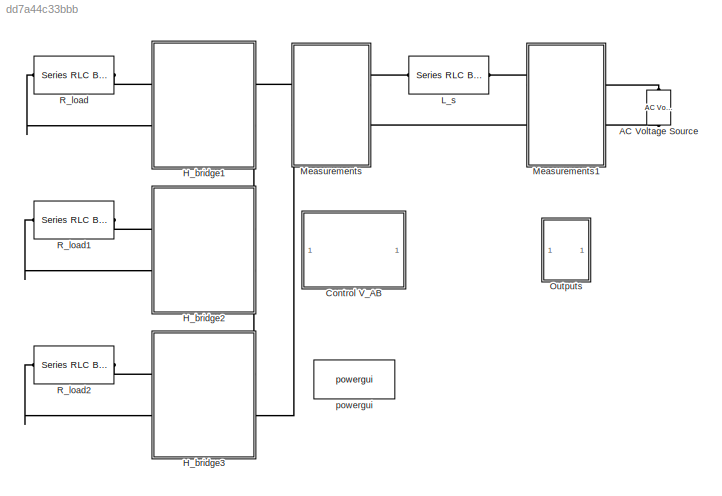
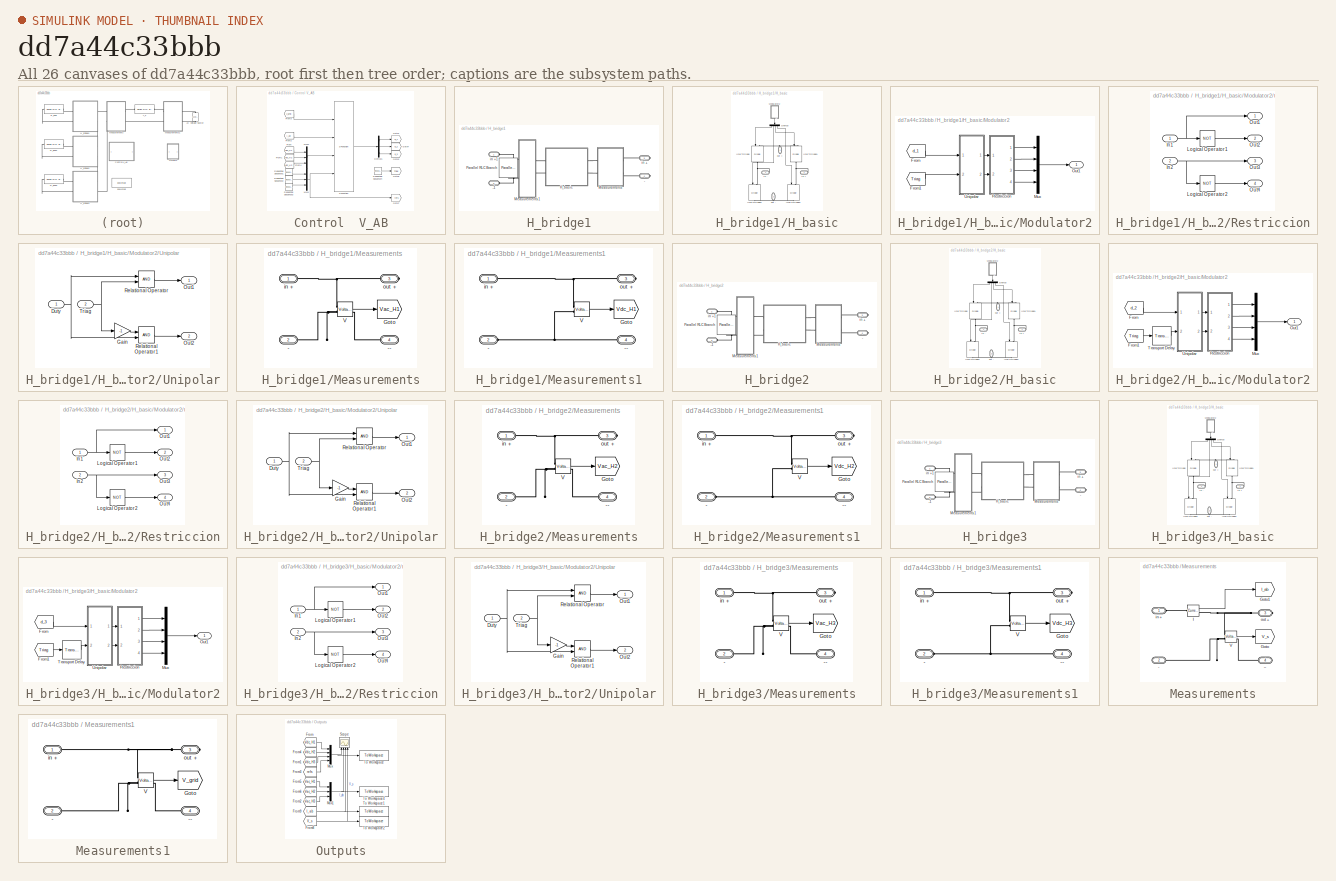
[diagram: thumbnail index - all 26 canvases of the model, root first then tree order]
MODEL slx_dd7a44c33bbb
KIND model
CONFIG AbsTol = auto
CONFIG EnableMultiTasking = off
CONFIG FixedStep = Tint
CONFIG InitFcn = run init_fcn_2.m;\n
CONFIG MaxStep = 1e-6
CONFIG MinStep = auto
CONFIG RelTol = 1e-6
CONFIG SampleTimeConstraint = Unconstrained
CONFIG SolverName = FixedStepDiscrete
CONFIG StartTime = 0.0
CONFIG StopTime = 9
BLOCK [Reference] AC Voltage Source  REF=spsACVoltageSourceLib/AC Voltage Source
  Ports = [0, 0, 0, 0, 0, 1, 1]
  SourceBlock = spsACVoltageSourceLib/AC Voltage Source
  SourceProductBaseCode = PS
  SourceType = AC Voltage Source
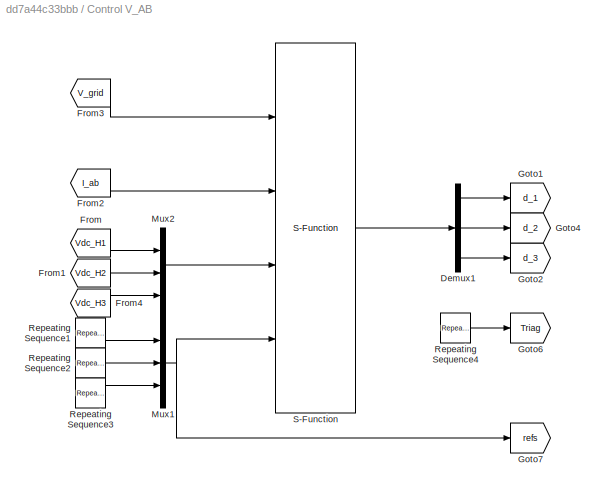
BLOCK [SubSystem] Control  V_AB
  Ports = []
  RequestExecContextInheritance = off
BLOCK [Demux] Control  V_AB/Demux1
  NameLocation = right
  Outputs = 3
  Ports = [1, 3]
BLOCK [From] Control  V_AB/From
  GotoTag = Vdc_H1
  TagVisibility = global
BLOCK [From] Control  V_AB/From1
  GotoTag = Vdc_H2
  TagVisibility = global
BLOCK [From] Control  V_AB/From2
  GotoTag = I_ab
  TagVisibility = global
BLOCK [From] Control  V_AB/From3
  GotoTag = V_grid
  TagVisibility = global
BLOCK [From] Control  V_AB/From4
  GotoTag = Vdc_H3
  TagVisibility = global
BLOCK [Goto] Control  V_AB/Goto1
  GotoTag = d_1
  TagVisibility = global
BLOCK [Goto] Control  V_AB/Goto2
  GotoTag = d_3
  TagVisibility = global
BLOCK [Goto] Control  V_AB/Goto4
  GotoTag = d_2
  TagVisibility = global
BLOCK [Goto] Control  V_AB/Goto6
  GotoTag = Triag
  TagVisibility = global
BLOCK [Goto] Control  V_AB/Goto7
  GotoTag = refs
  TagVisibility = global
BLOCK [Mux] Control  V_AB/Mux1
  DisplayOption = bar
  Inputs = 3
  Ports = [3, 1]
BLOCK [Mux] Control  V_AB/Mux2
  DisplayOption = bar
  Inputs = 3
  Ports = [3, 1]
BLOCK [Reference] Control  V_AB/Repeating Sequence1  REF=simulink/Sources/Repeating
Sequence
  Ports = [0, 1]
  SourceBlock = simulink/Sources/Repeating\nSequence
  SourceProductBaseCode = SL
  SourceType = Repeating table
BLOCK [Reference] Control  V_AB/Repeating Sequence2  REF=simulink/Sources/Repeating
Sequence
  Ports = [0, 1]
  SourceBlock = simulink/Sources/Repeating\nSequence
  SourceProductBaseCode = SL
  SourceType = Repeating table
BLOCK [Reference] Control  V_AB/Repeating Sequence3  REF=simulink/Sources/Repeating
Sequence
  Ports = [0, 1]
  SourceBlock = simulink/Sources/Repeating\nSequence
  SourceProductBaseCode = SL
  SourceType = Repeating table
BLOCK [Reference] Control  V_AB/Repeating Sequence4  REF=simulink/Sources/Repeating
Sequence
  Ports = [0, 1]
  SourceBlock = simulink/Sources/Repeating\nSequence
  SourceProductBaseCode = SL
  SourceType = Repeating table
BLOCK [S-Function] Control  V_AB/S-Function
  EnableBusSupport = off
  FunctionName = control_2
  Ports = [4, 1]
  SFcnIsStateOwnerBlock = off
  SFunctionDeploymentMode = off
BLOCK [SubSystem] H_bridge1
  Ports = [0, 0, 0, 0, 0, 2, 2]
  RequestExecContextInheritance = off
BLOCK [PMIOPort] H_bridge1/-
  Port = 4
  Side = Right
BLOCK [PMIOPort] H_bridge1/-1
  Port = 2
  Side = Left
BLOCK [SubSystem] H_bridge1/H_basic
  Ports = [0, 0, 0, 0, 0, 2, 2]
  RequestExecContextInheritance = off
BLOCK [Demux] H_bridge1/H_basic/Demux
  NameLocation = left
  Ports = [1, 4]
BLOCK [Reference] H_bridge1/H_basic/IGBT//Diode  REF=spsIGBTDiodeLib/IGBT//Diode
  NameLocation = left
  Ports = [1, 0, 0, 0, 0, 1, 1]
  SourceBlock = spsIGBTDiodeLib/IGBT//Diode
  SourceProductBaseCode = PS
  SourceType = IGBT/Diode
BLOCK [Reference] H_bridge1/H_basic/IGBT//Diode1  REF=spsIGBTDiodeLib/IGBT//Diode
  NameLocation = left
  Ports = [1, 0, 0, 0, 0, 1, 1]
  SourceBlock = spsIGBTDiodeLib/IGBT//Diode
  SourceProductBaseCode = PS
  SourceType = IGBT/Diode
BLOCK [Reference] H_bridge1/H_basic/IGBT//Diode2  REF=spsIGBTDiodeLib/IGBT//Diode
  NameLocation = left
  Ports = [1, 0, 0, 0, 0, 1, 1]
  SourceBlock = spsIGBTDiodeLib/IGBT//Diode
  SourceProductBaseCode = PS
  SourceType = IGBT/Diode
BLOCK [Reference] H_bridge1/H_basic/IGBT//Diode3  REF=spsIGBTDiodeLib/IGBT//Diode
  NameLocation = left
  Ports = [1, 0, 0, 0, 0, 1, 1]
  SourceBlock = spsIGBTDiodeLib/IGBT//Diode
  SourceProductBaseCode = PS
  SourceType = IGBT/Diode
BLOCK [SubSystem] H_bridge1/H_basic/Modulator2
  NameLocation = top
  Ports = [0, 1]
  RequestExecContextInheritance = off
BLOCK [From] H_bridge1/H_basic/Modulator2/From
  GotoTag = d_1
  TagVisibility = global
BLOCK [From] H_bridge1/H_basic/Modulator2/From1
  GotoTag = Triag
  TagVisibility = global
BLOCK [Mux] H_bridge1/H_basic/Modulator2/Mux
  DisplayOption = bar
  Ports = [4, 1]
BLOCK [Outport] H_bridge1/H_basic/Modulator2/Out1
BLOCK [SubSystem] H_bridge1/H_basic/Modulator2/Restriccion
  Ports = [2, 4]
  RequestExecContextInheritance = off
BLOCK [Inport] H_bridge1/H_basic/Modulator2/Restriccion/In1
BLOCK [Inport] H_bridge1/H_basic/Modulator2/Restriccion/In2
  Port = 2
BLOCK [Logic] H_bridge1/H_basic/Modulator2/Restriccion/Logical Operator1
  AllPortsSameDT = off
  Operator = NOT
  OutDataTypeStr = boolean
  Ports = [1, 1]
BLOCK [Logic] H_bridge1/H_basic/Modulator2/Restriccion/Logical Operator2
  AllPortsSameDT = off
  Operator = NOT
  OutDataTypeStr = boolean
  Ports = [1, 1]
BLOCK [Outport] H_bridge1/H_basic/Modulator2/Restriccion/Out1
BLOCK [Outport] H_bridge1/H_basic/Modulator2/Restriccion/Out2
  Port = 2
BLOCK [Outport] H_bridge1/H_basic/Modulator2/Restriccion/Out3
  Port = 3
BLOCK [Outport] H_bridge1/H_basic/Modulator2/Restriccion/Out4
  Port = 4
BLOCK [SubSystem] H_bridge1/H_basic/Modulator2/Unipolar
  Ports = [2, 2]
  RequestExecContextInheritance = off
BLOCK [Inport] H_bridge1/H_basic/Modulator2/Unipolar/Duty
BLOCK [Gain] H_bridge1/H_basic/Modulator2/Unipolar/Gain
  Gain = -1
BLOCK [Outport] H_bridge1/H_basic/Modulator2/Unipolar/Out1
BLOCK [Outport] H_bridge1/H_basic/Modulator2/Unipolar/Out2
  Port = 2
BLOCK [RelationalOperator] H_bridge1/H_basic/Modulator2/Unipolar/Relational Operator
  InputSameDT = off
  OutDataTypeStr = boolean
  Ports = [2, 1]
  RndMeth = Simplest
BLOCK [RelationalOperator] H_bridge1/H_basic/Modulator2/Unipolar/Relational Operator1
  InputSameDT = off
  OutDataTypeStr = boolean
  Ports = [2, 1]
  RndMeth = Simplest
BLOCK [Inport] H_bridge1/H_basic/Modulator2/Unipolar/Triag
  Port = 2
BLOCK [PMIOPort] H_bridge1/H_basic/in +
  Port = 3
  Side = Right
BLOCK [PMIOPort] H_bridge1/H_basic/in -
  Port = 4
  Side = Right
BLOCK [PMIOPort] H_bridge1/H_basic/out +
  Side = Left
BLOCK [PMIOPort] H_bridge1/H_basic/out -
  NameLocation = top
  Port = 2
  Side = Left
BLOCK [SubSystem] H_bridge1/Measurements
  Ports = [0, 0, 0, 0, 0, 2, 2]
  RequestExecContextInheritance = off
BLOCK [PMIOPort] H_bridge1/Measurements/-
  Port = 2
  Side = Left
BLOCK [PMIOPort] H_bridge1/Measurements/--
  Port = 4
  Side = Right
BLOCK [Goto] H_bridge1/Measurements/Goto
  GotoTag = Vac_H1
  TagVisibility = global
BLOCK [Reference] H_bridge1/Measurements/V  REF=spsVoltageMeasurementLib/Voltage Measurement
  Ports = [0, 1, 0, 0, 0, 2]
  SourceBlock = spsVoltageMeasurementLib/Voltage Measurement
  SourceProductBaseCode = PS
  SourceType = Voltage Measurement
  UserDataPersistent = on
BLOCK [PMIOPort] H_bridge1/Measurements/in +
  Side = Left
BLOCK [PMIOPort] H_bridge1/Measurements/out +
  Port = 3
  Side = Right
BLOCK [SubSystem] H_bridge1/Measurements1
  Ports = [0, 0, 0, 0, 0, 2, 2]
  RequestExecContextInheritance = off
BLOCK [PMIOPort] H_bridge1/Measurements1/-
  Port = 2
  Side = Left
BLOCK [PMIOPort] H_bridge1/Measurements1/--
  Port = 4
  Side = Right
BLOCK [Goto] H_bridge1/Measurements1/Goto
  GotoTag = Vdc_H1
  TagVisibility = global
BLOCK [Reference] H_bridge1/Measurements1/V  REF=spsVoltageMeasurementLib/Voltage Measurement
  Ports = [0, 1, 0, 0, 0, 2]
  SourceBlock = spsVoltageMeasurementLib/Voltage Measurement
  SourceProductBaseCode = PS
  SourceType = Voltage Measurement
  UserDataPersistent = on
BLOCK [PMIOPort] H_bridge1/Measurements1/in +
  Side = Left
BLOCK [PMIOPort] H_bridge1/Measurements1/out +
  Port = 3
  Side = Right
BLOCK [Reference] H_bridge1/Parallel RLC Branch  REF=spsParallelRLCBranchLib/Parallel RLC Branch
  AttributesFormatString = \n
  NameLocation = left
  Ports = [0, 0, 0, 0, 0, 1, 1]
  SourceBlock = spsParallelRLCBranchLib/Parallel RLC Branch
  SourceProductBaseCode = PS
  SourceType = Parallel RLC Branch
BLOCK [PMIOPort] H_bridge1/in +
  Port = 3
  Side = Right
BLOCK [PMIOPort] H_bridge1/in +1
  Side = Left
BLOCK [SubSystem] H_bridge2
  Ports = [0, 0, 0, 0, 0, 2, 2]
  RequestExecContextInheritance = off
BLOCK [PMIOPort] H_bridge2/-
  Port = 4
  Side = Right
BLOCK [PMIOPort] H_bridge2/-1
  Port = 2
  Side = Left
BLOCK [SubSystem] H_bridge2/H_basic
  Ports = [0, 0, 0, 0, 0, 2, 2]
  RequestExecContextInheritance = off
BLOCK [Demux] H_bridge2/H_basic/Demux
  NameLocation = left
  Ports = [1, 4]
BLOCK [Reference] H_bridge2/H_basic/IGBT//Diode  REF=spsIGBTDiodeLib/IGBT//Diode
  NameLocation = left
  Ports = [1, 0, 0, 0, 0, 1, 1]
  SourceBlock = spsIGBTDiodeLib/IGBT//Diode
  SourceProductBaseCode = PS
  SourceType = IGBT/Diode
BLOCK [Reference] H_bridge2/H_basic/IGBT//Diode1  REF=spsIGBTDiodeLib/IGBT//Diode
  NameLocation = left
  Ports = [1, 0, 0, 0, 0, 1, 1]
  SourceBlock = spsIGBTDiodeLib/IGBT//Diode
  SourceProductBaseCode = PS
  SourceType = IGBT/Diode
BLOCK [Reference] H_bridge2/H_basic/IGBT//Diode2  REF=spsIGBTDiodeLib/IGBT//Diode
  NameLocation = left
  Ports = [1, 0, 0, 0, 0, 1, 1]
  SourceBlock = spsIGBTDiodeLib/IGBT//Diode
  SourceProductBaseCode = PS
  SourceType = IGBT/Diode
BLOCK [Reference] H_bridge2/H_basic/IGBT//Diode3  REF=spsIGBTDiodeLib/IGBT//Diode
  NameLocation = left
  Ports = [1, 0, 0, 0, 0, 1, 1]
  SourceBlock = spsIGBTDiodeLib/IGBT//Diode
  SourceProductBaseCode = PS
  SourceType = IGBT/Diode
BLOCK [SubSystem] H_bridge2/H_basic/Modulator2
  NameLocation = top
  Ports = [0, 1]
  RequestExecContextInheritance = off
BLOCK [From] H_bridge2/H_basic/Modulator2/From
  GotoTag = d_2
  TagVisibility = global
BLOCK [From] H_bridge2/H_basic/Modulator2/From1
  GotoTag = Triag
  TagVisibility = global
BLOCK [Mux] H_bridge2/H_basic/Modulator2/Mux
  DisplayOption = bar
  Ports = [4, 1]
BLOCK [Outport] H_bridge2/H_basic/Modulator2/Out1
BLOCK [SubSystem] H_bridge2/H_basic/Modulator2/Restriccion
  Ports = [2, 4]
  RequestExecContextInheritance = off
BLOCK [Inport] H_bridge2/H_basic/Modulator2/Restriccion/In1
BLOCK [Inport] H_bridge2/H_basic/Modulator2/Restriccion/In2
  Port = 2
BLOCK [Logic] H_bridge2/H_basic/Modulator2/Restriccion/Logical Operator1
  AllPortsSameDT = off
  Operator = NOT
  OutDataTypeStr = boolean
  Ports = [1, 1]
BLOCK [Logic] H_bridge2/H_basic/Modulator2/Restriccion/Logical Operator2
  AllPortsSameDT = off
  Operator = NOT
  OutDataTypeStr = boolean
  Ports = [1, 1]
BLOCK [Outport] H_bridge2/H_basic/Modulator2/Restriccion/Out1
BLOCK [Outport] H_bridge2/H_basic/Modulator2/Restriccion/Out2
  Port = 2
BLOCK [Outport] H_bridge2/H_basic/Modulator2/Restriccion/Out3
  Port = 3
BLOCK [Outport] H_bridge2/H_basic/Modulator2/Restriccion/Out4
  Port = 4
BLOCK [TransportDelay] H_bridge2/H_basic/Modulator2/Transport Delay
  DelayTime = shift
  Ports = [1, 1]
BLOCK [SubSystem] H_bridge2/H_basic/Modulator2/Unipolar
  Ports = [2, 2]
  RequestExecContextInheritance = off
BLOCK [Inport] H_bridge2/H_basic/Modulator2/Unipolar/Duty
BLOCK [Gain] H_bridge2/H_basic/Modulator2/Unipolar/Gain
  Gain = -1
BLOCK [Outport] H_bridge2/H_basic/Modulator2/Unipolar/Out1
BLOCK [Outport] H_bridge2/H_basic/Modulator2/Unipolar/Out2
  Port = 2
BLOCK [RelationalOperator] H_bridge2/H_basic/Modulator2/Unipolar/Relational Operator
  InputSameDT = off
  OutDataTypeStr = boolean
  Ports = [2, 1]
  RndMeth = Simplest
BLOCK [RelationalOperator] H_bridge2/H_basic/Modulator2/Unipolar/Relational Operator1
  InputSameDT = off
  OutDataTypeStr = boolean
  Ports = [2, 1]
  RndMeth = Simplest
BLOCK [Inport] H_bridge2/H_basic/Modulator2/Unipolar/Triag
  Port = 2
BLOCK [PMIOPort] H_bridge2/H_basic/in +
  Port = 3
  Side = Right
BLOCK [PMIOPort] H_bridge2/H_basic/in -
  Port = 4
  Side = Right
BLOCK [PMIOPort] H_bridge2/H_basic/out +
  Side = Left
BLOCK [PMIOPort] H_bridge2/H_basic/out -
  NameLocation = top
  Port = 2
  Side = Left
BLOCK [SubSystem] H_bridge2/Measurements
  Ports = [0, 0, 0, 0, 0, 2, 2]
  RequestExecContextInheritance = off
BLOCK [PMIOPort] H_bridge2/Measurements/-
  Port = 2
  Side = Left
BLOCK [PMIOPort] H_bridge2/Measurements/--
  Port = 4
  Side = Right
BLOCK [Goto] H_bridge2/Measurements/Goto
  GotoTag = Vac_H2
  TagVisibility = global
BLOCK [Reference] H_bridge2/Measurements/V  REF=spsVoltageMeasurementLib/Voltage Measurement
  Ports = [0, 1, 0, 0, 0, 2]
  SourceBlock = spsVoltageMeasurementLib/Voltage Measurement
  SourceProductBaseCode = PS
  SourceType = Voltage Measurement
  UserDataPersistent = on
BLOCK [PMIOPort] H_bridge2/Measurements/in +
  Side = Left
BLOCK [PMIOPort] H_bridge2/Measurements/out +
  Port = 3
  Side = Right
BLOCK [SubSystem] H_bridge2/Measurements1
  Ports = [0, 0, 0, 0, 0, 2, 2]
  RequestExecContextInheritance = off
BLOCK [PMIOPort] H_bridge2/Measurements1/-
  Port = 2
  Side = Left
BLOCK [PMIOPort] H_bridge2/Measurements1/--
  Port = 4
  Side = Right
BLOCK [Goto] H_bridge2/Measurements1/Goto
  GotoTag = Vdc_H2
  TagVisibility = global
BLOCK [Reference] H_bridge2/Measurements1/V  REF=spsVoltageMeasurementLib/Voltage Measurement
  Ports = [0, 1, 0, 0, 0, 2]
  SourceBlock = spsVoltageMeasurementLib/Voltage Measurement
  SourceProductBaseCode = PS
  SourceType = Voltage Measurement
  UserDataPersistent = on
BLOCK [PMIOPort] H_bridge2/Measurements1/in +
  Side = Left
BLOCK [PMIOPort] H_bridge2/Measurements1/out +
  Port = 3
  Side = Right
BLOCK [Reference] H_bridge2/Parallel RLC Branch  REF=spsParallelRLCBranchLib/Parallel RLC Branch
  AttributesFormatString = \n
  NameLocation = left
  Ports = [0, 0, 0, 0, 0, 1, 1]
  SourceBlock = spsParallelRLCBranchLib/Parallel RLC Branch
  SourceProductBaseCode = PS
  SourceType = Parallel RLC Branch
BLOCK [PMIOPort] H_bridge2/in +
  Port = 3
  Side = Right
BLOCK [PMIOPort] H_bridge2/in +1
  Side = Left
BLOCK [SubSystem] H_bridge3
  Ports = [0, 0, 0, 0, 0, 2, 2]
  RequestExecContextInheritance = off
BLOCK [PMIOPort] H_bridge3/-
  Port = 4
  Side = Right
BLOCK [PMIOPort] H_bridge3/-1
  Port = 2
  Side = Left
BLOCK [SubSystem] H_bridge3/H_basic
  Ports = [0, 0, 0, 0, 0, 2, 2]
  RequestExecContextInheritance = off
BLOCK [Demux] H_bridge3/H_basic/Demux
  NameLocation = left
  Ports = [1, 4]
BLOCK [Reference] H_bridge3/H_basic/IGBT//Diode  REF=spsIGBTDiodeLib/IGBT//Diode
  NameLocation = left
  Ports = [1, 0, 0, 0, 0, 1, 1]
  SourceBlock = spsIGBTDiodeLib/IGBT//Diode
  SourceProductBaseCode = PS
  SourceType = IGBT/Diode
BLOCK [Reference] H_bridge3/H_basic/IGBT//Diode1  REF=spsIGBTDiodeLib/IGBT//Diode
  NameLocation = left
  Ports = [1, 0, 0, 0, 0, 1, 1]
  SourceBlock = spsIGBTDiodeLib/IGBT//Diode
  SourceProductBaseCode = PS
  SourceType = IGBT/Diode
BLOCK [Reference] H_bridge3/H_basic/IGBT//Diode2  REF=spsIGBTDiodeLib/IGBT//Diode
  NameLocation = left
  Ports = [1, 0, 0, 0, 0, 1, 1]
  SourceBlock = spsIGBTDiodeLib/IGBT//Diode
  SourceProductBaseCode = PS
  SourceType = IGBT/Diode
BLOCK [Reference] H_bridge3/H_basic/IGBT//Diode3  REF=spsIGBTDiodeLib/IGBT//Diode
  NameLocation = left
  Ports = [1, 0, 0, 0, 0, 1, 1]
  SourceBlock = spsIGBTDiodeLib/IGBT//Diode
  SourceProductBaseCode = PS
  SourceType = IGBT/Diode
BLOCK [SubSystem] H_bridge3/H_basic/Modulator2
  NameLocation = top
  Ports = [0, 1]
  RequestExecContextInheritance = off
BLOCK [From] H_bridge3/H_basic/Modulator2/From
  GotoTag = d_3
  TagVisibility = global
BLOCK [From] H_bridge3/H_basic/Modulator2/From1
  GotoTag = Triag
  TagVisibility = global
BLOCK [Mux] H_bridge3/H_basic/Modulator2/Mux
  DisplayOption = bar
  Ports = [4, 1]
BLOCK [Outport] H_bridge3/H_basic/Modulator2/Out1
BLOCK [SubSystem] H_bridge3/H_basic/Modulator2/Restriccion
  Ports = [2, 4]
  RequestExecContextInheritance = off
BLOCK [Inport] H_bridge3/H_basic/Modulator2/Restriccion/In1
BLOCK [Inport] H_bridge3/H_basic/Modulator2/Restriccion/In2
  Port = 2
BLOCK [Logic] H_bridge3/H_basic/Modulator2/Restriccion/Logical Operator1
  AllPortsSameDT = off
  Operator = NOT
  OutDataTypeStr = boolean
  Ports = [1, 1]
BLOCK [Logic] H_bridge3/H_basic/Modulator2/Restriccion/Logical Operator2
  AllPortsSameDT = off
  Operator = NOT
  OutDataTypeStr = boolean
  Ports = [1, 1]
BLOCK [Outport] H_bridge3/H_basic/Modulator2/Restriccion/Out1
BLOCK [Outport] H_bridge3/H_basic/Modulator2/Restriccion/Out2
  Port = 2
BLOCK [Outport] H_bridge3/H_basic/Modulator2/Restriccion/Out3
  Port = 3
BLOCK [Outport] H_bridge3/H_basic/Modulator2/Restriccion/Out4
  Port = 4
BLOCK [TransportDelay] H_bridge3/H_basic/Modulator2/Transport Delay
  DelayTime = 2*shift
  Ports = [1, 1]
BLOCK [SubSystem] H_bridge3/H_basic/Modulator2/Unipolar
  Ports = [2, 2]
  RequestExecContextInheritance = off
BLOCK [Inport] H_bridge3/H_basic/Modulator2/Unipolar/Duty
BLOCK [Gain] H_bridge3/H_basic/Modulator2/Unipolar/Gain
  Gain = -1
BLOCK [Outport] H_bridge3/H_basic/Modulator2/Unipolar/Out1
BLOCK [Outport] H_bridge3/H_basic/Modulator2/Unipolar/Out2
  Port = 2
BLOCK [RelationalOperator] H_bridge3/H_basic/Modulator2/Unipolar/Relational Operator
  InputSameDT = off
  OutDataTypeStr = boolean
  Ports = [2, 1]
  RndMeth = Simplest
BLOCK [RelationalOperator] H_bridge3/H_basic/Modulator2/Unipolar/Relational Operator1
  InputSameDT = off
  OutDataTypeStr = boolean
  Ports = [2, 1]
  RndMeth = Simplest
BLOCK [Inport] H_bridge3/H_basic/Modulator2/Unipolar/Triag
  Port = 2
BLOCK [PMIOPort] H_bridge3/H_basic/in +
  Port = 3
  Side = Right
BLOCK [PMIOPort] H_bridge3/H_basic/in -
  Port = 4
  Side = Right
BLOCK [PMIOPort] H_bridge3/H_basic/out +
  Side = Left
BLOCK [PMIOPort] H_bridge3/H_basic/out -
  NameLocation = top
  Port = 2
  Side = Left
BLOCK [SubSystem] H_bridge3/Measurements
  Ports = [0, 0, 0, 0, 0, 2, 2]
  RequestExecContextInheritance = off
BLOCK [PMIOPort] H_bridge3/Measurements/-
  Port = 2
  Side = Left
BLOCK [PMIOPort] H_bridge3/Measurements/--
  Port = 4
  Side = Right
BLOCK [Goto] H_bridge3/Measurements/Goto
  GotoTag = Vac_H3
  TagVisibility = global
BLOCK [Reference] H_bridge3/Measurements/V  REF=spsVoltageMeasurementLib/Voltage Measurement
  Ports = [0, 1, 0, 0, 0, 2]
  SourceBlock = spsVoltageMeasurementLib/Voltage Measurement
  SourceProductBaseCode = PS
  SourceType = Voltage Measurement
  UserDataPersistent = on
BLOCK [PMIOPort] H_bridge3/Measurements/in +
  Side = Left
BLOCK [PMIOPort] H_bridge3/Measurements/out +
  Port = 3
  Side = Right
BLOCK [SubSystem] H_bridge3/Measurements1
  Ports = [0, 0, 0, 0, 0, 2, 2]
  RequestExecContextInheritance = off
BLOCK [PMIOPort] H_bridge3/Measurements1/-
  Port = 2
  Side = Left
BLOCK [PMIOPort] H_bridge3/Measurements1/--
  Port = 4
  Side = Right
BLOCK [Goto] H_bridge3/Measurements1/Goto
  GotoTag = Vdc_H3
  TagVisibility = global
BLOCK [Reference] H_bridge3/Measurements1/V  REF=spsVoltageMeasurementLib/Voltage Measurement
  Ports = [0, 1, 0, 0, 0, 2]
  SourceBlock = spsVoltageMeasurementLib/Voltage Measurement
  SourceProductBaseCode = PS
  SourceType = Voltage Measurement
  UserDataPersistent = on
BLOCK [PMIOPort] H_bridge3/Measurements1/in +
  Side = Left
BLOCK [PMIOPort] H_bridge3/Measurements1/out +
  Port = 3
  Side = Right
BLOCK [Reference] H_bridge3/Parallel RLC Branch  REF=spsParallelRLCBranchLib/Parallel RLC Branch
  AttributesFormatString = \n
  NameLocation = left
  Ports = [0, 0, 0, 0, 0, 1, 1]
  SourceBlock = spsParallelRLCBranchLib/Parallel RLC Branch
  SourceProductBaseCode = PS
  SourceType = Parallel RLC Branch
BLOCK [PMIOPort] H_bridge3/in +
  Port = 3
  Side = Right
BLOCK [PMIOPort] H_bridge3/in +1
  Side = Left
BLOCK [Reference] L_s  REF=spsSeriesRLCBranchLib/Series RLC Branch
  Ports = [0, 0, 0, 0, 0, 1, 1]
  SourceBlock = spsSeriesRLCBranchLib/Series RLC Branch
  SourceProductBaseCode = PS
  SourceType = Series RLC Branch
BLOCK [SubSystem] Measurements
  NameLocation = top
  Ports = [0, 0, 0, 0, 0, 2, 2]
  RequestExecContextInheritance = off
BLOCK [PMIOPort] Measurements/-
  Port = 2
  Side = Left
BLOCK [PMIOPort] Measurements/--
  Port = 4
  Side = Right
BLOCK [Goto] Measurements/Goto
  GotoTag = V_s
  TagVisibility = global
BLOCK [Goto] Measurements/Goto1
  GotoTag = I_ab
  TagVisibility = global
BLOCK [Reference] Measurements/I  REF=spsCurrentMeasurementLib/Current Measurement
  Ports = [0, 1, 0, 0, 0, 1, 1]
  SourceBlock = spsCurrentMeasurementLib/Current Measurement
  SourceProductBaseCode = PS
  SourceType = Current Measurement
  UserDataPersistent = on
BLOCK [Reference] Measurements/V  REF=spsVoltageMeasurementLib/Voltage Measurement
  Ports = [0, 1, 0, 0, 0, 2]
  SourceBlock = spsVoltageMeasurementLib/Voltage Measurement
  SourceProductBaseCode = PS
  SourceType = Voltage Measurement
  UserDataPersistent = on
BLOCK [PMIOPort] Measurements/in +
  Side = Left
BLOCK [PMIOPort] Measurements/out +
  Port = 3
  Side = Right
BLOCK [SubSystem] Measurements1
  NameLocation = top
  Ports = [0, 0, 0, 0, 0, 2, 2]
  RequestExecContextInheritance = off
BLOCK [PMIOPort] Measurements1/-
  Port = 2
  Side = Left
BLOCK [PMIOPort] Measurements1/--
  Port = 4
  Side = Right
BLOCK [Goto] Measurements1/Goto
  GotoTag = V_grid
  TagVisibility = global
BLOCK [Reference] Measurements1/V  REF=spsVoltageMeasurementLib/Voltage Measurement
  Ports = [0, 1, 0, 0, 0, 2]
  SourceBlock = spsVoltageMeasurementLib/Voltage Measurement
  SourceProductBaseCode = PS
  SourceType = Voltage Measurement
  UserDataPersistent = on
BLOCK [PMIOPort] Measurements1/in +
  Side = Left
BLOCK [PMIOPort] Measurements1/out +
  Port = 3
  Side = Right
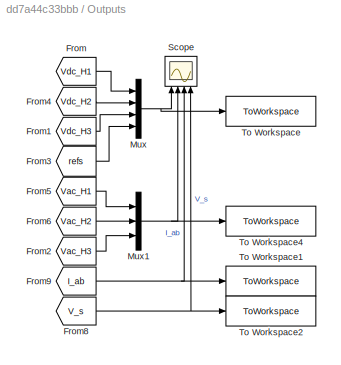
BLOCK [SubSystem] Outputs
  Ports = []
  RequestExecContextInheritance = off
BLOCK [From] Outputs/From
  GotoTag = Vdc_H1
  TagVisibility = global
BLOCK [From] Outputs/From1
  GotoTag = Vdc_H3
  TagVisibility = global
BLOCK [From] Outputs/From2
  GotoTag = Vac_H3
  TagVisibility = global
BLOCK [From] Outputs/From3
  GotoTag = refs
  TagVisibility = global
BLOCK [From] Outputs/From4
  GotoTag = Vdc_H2
  TagVisibility = global
BLOCK [From] Outputs/From5
  GotoTag = Vac_H1
  TagVisibility = global
BLOCK [From] Outputs/From6
  GotoTag = Vac_H2
  TagVisibility = global
BLOCK [From] Outputs/From8
  GotoTag = V_s
  TagVisibility = global
BLOCK [From] Outputs/From9
  GotoTag = I_ab
  TagVisibility = global
BLOCK [Mux] Outputs/Mux
  DisplayOption = bar
  Ports = [4, 1]
BLOCK [Mux] Outputs/Mux1
  DisplayOption = bar
  Inputs = 3
  Ports = [3, 1]
BLOCK [Scope] Outputs/Scope
  Floating = off
  NameLocation = right
  NumInputPorts = 4
  Ports = [4]
  ScopeSpecificationString = Simulink.scopes.TimeScopeBlockCfg('CurrentConfiguration', extmgr.ConfigurationSet(extmgr.Configuration('Core','General UI',true),extmgr.Configuration('Core','Source UI',true),extmgr.Configuration('Sources','WiredSimulink',true),extmgr.Configuration('Visuals','Time Domain',true,'SerializedDisplays',{struct('MinYLimReal','137.69346','MaxYLimReal','262.37107','YLabelReal','','MinYLimMag','137.69346',...<+3479ch>
BLOCK [ToWorkspace] Outputs/To Workspace
  FixptAsFi = on
  MaxDataPoints = inf
  Ports = [1]
  SampleTime = -1
  SaveFormat = Structure With Time
  VariableName = V_dcs
BLOCK [ToWorkspace] Outputs/To Workspace1
  FixptAsFi = on
  MaxDataPoints = inf
  Ports = [1]
  SampleTime = -1
  SaveFormat = Structure With Time
  VariableName = I_ab
BLOCK [ToWorkspace] Outputs/To Workspace2
  FixptAsFi = on
  MaxDataPoints = inf
  Ports = [1]
  SampleTime = -1
  SaveFormat = Structure With Time
  VariableName = V_s
BLOCK [ToWorkspace] Outputs/To Workspace4
  FixptAsFi = on
  MaxDataPoints = inf
  Ports = [1]
  SampleTime = -1
  SaveFormat = Structure With Time
  VariableName = V_acs
BLOCK [Reference] R_load  REF=spsSeriesRLCBranchLib/Series RLC Branch
  Ports = [0, 0, 0, 0, 0, 1, 1]
  SourceBlock = spsSeriesRLCBranchLib/Series RLC Branch
  SourceProductBaseCode = PS
  SourceType = Series RLC Branch
BLOCK [Reference] R_load1  REF=spsSeriesRLCBranchLib/Series RLC Branch
  Ports = [0, 0, 0, 0, 0, 1, 1]
  SourceBlock = spsSeriesRLCBranchLib/Series RLC Branch
  SourceProductBaseCode = PS
  SourceType = Series RLC Branch
BLOCK [Reference] R_load2  REF=spsSeriesRLCBranchLib/Series RLC Branch
  Ports = [0, 0, 0, 0, 0, 1, 1]
  SourceBlock = spsSeriesRLCBranchLib/Series RLC Branch
  SourceProductBaseCode = PS
  SourceType = Series RLC Branch
BLOCK [Reference] powergui  REF=spspowerguiLib/powergui
  Ports = []
  Priority = 1
  SourceBlock = spspowerguiLib/powergui
  SourceProductBaseCode = PS
  SourceType = PSB option menu block
LINE Control  V_AB/Demux1:1 -> Control  V_AB/Goto1:1
LINE Control  V_AB/Demux1:2 -> Control  V_AB/Goto4:1
LINE Control  V_AB/Demux1:3 -> Control  V_AB/Goto2:1
LINE Control  V_AB/From1:1 -> Control  V_AB/Mux2:2
LINE Control  V_AB/From2:1 -> Control  V_AB/S-Function:2
LINE Control  V_AB/From3:1 -> Control  V_AB/S-Function:1
LINE Control  V_AB/From4:1 -> Control  V_AB/Mux2:3
LINE Control  V_AB/From:1 -> Control  V_AB/Mux2:1
NET Control  V_AB/Mux1:1 -> Control  V_AB/Goto7:1, Control  V_AB/S-Function:4
LINE Control  V_AB/Mux2:1 -> Control  V_AB/S-Function:3
LINE Control  V_AB/Repeating Sequence1:1 -> Control  V_AB/Mux1:1
LINE Control  V_AB/Repeating Sequence2:1 -> Control  V_AB/Mux1:2
LINE Control  V_AB/Repeating Sequence3:1 -> Control  V_AB/Mux1:3
LINE Control  V_AB/Repeating Sequence4:1 -> Control  V_AB/Goto6:1
LINE Control  V_AB/S-Function:1 -> Control  V_AB/Demux1:1
LINE H_bridge1/H_basic/Demux:1 -> H_bridge1/H_basic/IGBT//Diode:1
LINE H_bridge1/H_basic/Demux:2 -> H_bridge1/H_basic/IGBT//Diode2:1
LINE H_bridge1/H_basic/Demux:3 -> H_bridge1/H_basic/IGBT//Diode1:1
LINE H_bridge1/H_basic/Demux:4 -> H_bridge1/H_basic/IGBT//Diode3:1
LINE H_bridge1/H_basic/Modulator2/From1:1 -> H_bridge1/H_basic/Modulator2/Unipolar:2
LINE H_bridge1/H_basic/Modulator2/From:1 -> H_bridge1/H_basic/Modulator2/Unipolar:1
LINE H_bridge1/H_basic/Modulator2/Mux:1 -> H_bridge1/H_basic/Modulator2/Out1:1
NET H_bridge1/H_basic/Modulator2/Restriccion/In1:1 -> H_bridge1/H_basic/Modulator2/Restriccion/Logical Operator1:1, H_bridge1/H_basic/Modulator2/Restriccion/Out1:1
NET H_bridge1/H_basic/Modulator2/Restriccion/In2:1 -> H_bridge1/H_basic/Modulator2/Restriccion/Logical Operator2:1, H_bridge1/H_basic/Modulator2/Restriccion/Out3:1
LINE H_bridge1/H_basic/Modulator2/Restriccion/Logical Operator1:1 -> H_bridge1/H_basic/Modulator2/Restriccion/Out2:1
LINE H_bridge1/H_basic/Modulator2/Restriccion/Logical Operator2:1 -> H_bridge1/H_basic/Modulator2/Restriccion/Out4:1
LINE H_bridge1/H_basic/Modulator2/Restriccion:1 -> H_bridge1/H_basic/Modulator2/Mux:1
LINE H_bridge1/H_basic/Modulator2/Restriccion:2 -> H_bridge1/H_basic/Modulator2/Mux:2
LINE H_bridge1/H_basic/Modulator2/Restriccion:3 -> H_bridge1/H_basic/Modulator2/Mux:3
LINE H_bridge1/H_basic/Modulator2/Restriccion:4 -> H_bridge1/H_basic/Modulator2/Mux:4
NET H_bridge1/H_basic/Modulator2/Unipolar/Duty:1 -> H_bridge1/H_basic/Modulator2/Unipolar/Relational Operator1:2, H_bridge1/H_basic/Modulator2/Unipolar/Relational Operator:1
LINE H_bridge1/H_basic/Modulator2/Unipolar/Gain:1 -> H_bridge1/H_basic/Modulator2/Unipolar/Relational Operator1:1
LINE H_bridge1/H_basic/Modulator2/Unipolar/Relational Operator1:1 -> H_bridge1/H_basic/Modulator2/Unipolar/Out2:1
LINE H_bridge1/H_basic/Modulator2/Unipolar/Relational Operator:1 -> H_bridge1/H_basic/Modulator2/Unipolar/Out1:1
NET H_bridge1/H_basic/Modulator2/Unipolar/Triag:1 -> H_bridge1/H_basic/Modulator2/Unipolar/Gain:1, H_bridge1/H_basic/Modulator2/Unipolar/Relational Operator:2
LINE H_bridge1/H_basic/Modulator2/Unipolar:1 -> H_bridge1/H_basic/Modulator2/Restriccion:1
LINE H_bridge1/H_basic/Modulator2/Unipolar:2 -> H_bridge1/H_basic/Modulator2/Restriccion:2
LINE H_bridge1/H_basic/Modulator2:1 -> H_bridge1/H_basic/Demux:1
LINE H_bridge1/Measurements/V:1 -> H_bridge1/Measurements/Goto:1
LINE H_bridge1/Measurements1/V:1 -> H_bridge1/Measurements1/Goto:1
LINE H_bridge2/H_basic/Demux:1 -> H_bridge2/H_basic/IGBT//Diode:1
LINE H_bridge2/H_basic/Demux:2 -> H_bridge2/H_basic/IGBT//Diode2:1
LINE H_bridge2/H_basic/Demux:3 -> H_bridge2/H_basic/IGBT//Diode1:1
LINE H_bridge2/H_basic/Demux:4 -> H_bridge2/H_basic/IGBT//Diode3:1
LINE H_bridge2/H_basic/Modulator2/From1:1 -> H_bridge2/H_basic/Modulator2/Transport Delay:1
LINE H_bridge2/H_basic/Modulator2/From:1 -> H_bridge2/H_basic/Modulator2/Unipolar:1
LINE H_bridge2/H_basic/Modulator2/Mux:1 -> H_bridge2/H_basic/Modulator2/Out1:1
NET H_bridge2/H_basic/Modulator2/Restriccion/In1:1 -> H_bridge2/H_basic/Modulator2/Restriccion/Logical Operator1:1, H_bridge2/H_basic/Modulator2/Restriccion/Out1:1
NET H_bridge2/H_basic/Modulator2/Restriccion/In2:1 -> H_bridge2/H_basic/Modulator2/Restriccion/Logical Operator2:1, H_bridge2/H_basic/Modulator2/Restriccion/Out3:1
LINE H_bridge2/H_basic/Modulator2/Restriccion/Logical Operator1:1 -> H_bridge2/H_basic/Modulator2/Restriccion/Out2:1
LINE H_bridge2/H_basic/Modulator2/Restriccion/Logical Operator2:1 -> H_bridge2/H_basic/Modulator2/Restriccion/Out4:1
LINE H_bridge2/H_basic/Modulator2/Restriccion:1 -> H_bridge2/H_basic/Modulator2/Mux:1
LINE H_bridge2/H_basic/Modulator2/Restriccion:2 -> H_bridge2/H_basic/Modulator2/Mux:2
LINE H_bridge2/H_basic/Modulator2/Restriccion:3 -> H_bridge2/H_basic/Modulator2/Mux:3
LINE H_bridge2/H_basic/Modulator2/Restriccion:4 -> H_bridge2/H_basic/Modulator2/Mux:4
LINE H_bridge2/H_basic/Modulator2/Transport Delay:1 -> H_bridge2/H_basic/Modulator2/Unipolar:2
NET H_bridge2/H_basic/Modulator2/Unipolar/Duty:1 -> H_bridge2/H_basic/Modulator2/Unipolar/Relational Operator1:2, H_bridge2/H_basic/Modulator2/Unipolar/Relational Operator:1
LINE H_bridge2/H_basic/Modulator2/Unipolar/Gain:1 -> H_bridge2/H_basic/Modulator2/Unipolar/Relational Operator1:1
LINE H_bridge2/H_basic/Modulator2/Unipolar/Relational Operator1:1 -> H_bridge2/H_basic/Modulator2/Unipolar/Out2:1
LINE H_bridge2/H_basic/Modulator2/Unipolar/Relational Operator:1 -> H_bridge2/H_basic/Modulator2/Unipolar/Out1:1
NET H_bridge2/H_basic/Modulator2/Unipolar/Triag:1 -> H_bridge2/H_basic/Modulator2/Unipolar/Gain:1, H_bridge2/H_basic/Modulator2/Unipolar/Relational Operator:2
LINE H_bridge2/H_basic/Modulator2/Unipolar:1 -> H_bridge2/H_basic/Modulator2/Restriccion:1
LINE H_bridge2/H_basic/Modulator2/Unipolar:2 -> H_bridge2/H_basic/Modulator2/Restriccion:2
LINE H_bridge2/H_basic/Modulator2:1 -> H_bridge2/H_basic/Demux:1
LINE H_bridge2/Measurements/V:1 -> H_bridge2/Measurements/Goto:1
LINE H_bridge2/Measurements1/V:1 -> H_bridge2/Measurements1/Goto:1
LINE H_bridge3/H_basic/Demux:1 -> H_bridge3/H_basic/IGBT//Diode:1
LINE H_bridge3/H_basic/Demux:2 -> H_bridge3/H_basic/IGBT//Diode2:1
LINE H_bridge3/H_basic/Demux:3 -> H_bridge3/H_basic/IGBT//Diode1:1
LINE H_bridge3/H_basic/Demux:4 -> H_bridge3/H_basic/IGBT//Diode3:1
LINE H_bridge3/H_basic/Modulator2/From1:1 -> H_bridge3/H_basic/Modulator2/Transport Delay:1
LINE H_bridge3/H_basic/Modulator2/From:1 -> H_bridge3/H_basic/Modulator2/Unipolar:1
LINE H_bridge3/H_basic/Modulator2/Mux:1 -> H_bridge3/H_basic/Modulator2/Out1:1
NET H_bridge3/H_basic/Modulator2/Restriccion/In1:1 -> H_bridge3/H_basic/Modulator2/Restriccion/Logical Operator1:1, H_bridge3/H_basic/Modulator2/Restriccion/Out1:1
NET H_bridge3/H_basic/Modulator2/Restriccion/In2:1 -> H_bridge3/H_basic/Modulator2/Restriccion/Logical Operator2:1, H_bridge3/H_basic/Modulator2/Restriccion/Out3:1
LINE H_bridge3/H_basic/Modulator2/Restriccion/Logical Operator1:1 -> H_bridge3/H_basic/Modulator2/Restriccion/Out2:1
LINE H_bridge3/H_basic/Modulator2/Restriccion/Logical Operator2:1 -> H_bridge3/H_basic/Modulator2/Restriccion/Out4:1
LINE H_bridge3/H_basic/Modulator2/Restriccion:1 -> H_bridge3/H_basic/Modulator2/Mux:1
LINE H_bridge3/H_basic/Modulator2/Restriccion:2 -> H_bridge3/H_basic/Modulator2/Mux:2
LINE H_bridge3/H_basic/Modulator2/Restriccion:3 -> H_bridge3/H_basic/Modulator2/Mux:3
LINE H_bridge3/H_basic/Modulator2/Restriccion:4 -> H_bridge3/H_basic/Modulator2/Mux:4
LINE H_bridge3/H_basic/Modulator2/Transport Delay:1 -> H_bridge3/H_basic/Modulator2/Unipolar:2
NET H_bridge3/H_basic/Modulator2/Unipolar/Duty:1 -> H_bridge3/H_basic/Modulator2/Unipolar/Relational Operator1:2, H_bridge3/H_basic/Modulator2/Unipolar/Relational Operator:1
LINE H_bridge3/H_basic/Modulator2/Unipolar/Gain:1 -> H_bridge3/H_basic/Modulator2/Unipolar/Relational Operator1:1
LINE H_bridge3/H_basic/Modulator2/Unipolar/Relational Operator1:1 -> H_bridge3/H_basic/Modulator2/Unipolar/Out2:1
LINE H_bridge3/H_basic/Modulator2/Unipolar/Relational Operator:1 -> H_bridge3/H_basic/Modulator2/Unipolar/Out1:1
NET H_bridge3/H_basic/Modulator2/Unipolar/Triag:1 -> H_bridge3/H_basic/Modulator2/Unipolar/Gain:1, H_bridge3/H_basic/Modulator2/Unipolar/Relational Operator:2
LINE H_bridge3/H_basic/Modulator2/Unipolar:1 -> H_bridge3/H_basic/Modulator2/Restriccion:1
LINE H_bridge3/H_basic/Modulator2/Unipolar:2 -> H_bridge3/H_basic/Modulator2/Restriccion:2
LINE H_bridge3/H_basic/Modulator2:1 -> H_bridge3/H_basic/Demux:1
LINE H_bridge3/Measurements/V:1 -> H_bridge3/Measurements/Goto:1
LINE H_bridge3/Measurements1/V:1 -> H_bridge3/Measurements1/Goto:1
LINE Measurements/I:1 -> Measurements/Goto1:1
LINE Measurements/V:1 -> Measurements/Goto:1
LINE Measurements1/V:1 -> Measurements1/Goto:1
LINE Outputs/From1:1 -> Outputs/Mux:3
LINE Outputs/From2:1 -> Outputs/Mux1:3
LINE Outputs/From3:1 -> Outputs/Mux:4
LINE Outputs/From4:1 -> Outputs/Mux:2
LINE Outputs/From5:1 -> Outputs/Mux1:1
LINE Outputs/From6:1 -> Outputs/Mux1:2
NET Outputs/From8:1 -> Outputs/Scope:4, Outputs/To Workspace2:1
NET Outputs/From9:1 -> Outputs/Scope:3, Outputs/To Workspace1:1
LINE Outputs/From:1 -> Outputs/Mux:1
NET Outputs/Mux1:1 -> Outputs/Scope:2, Outputs/To Workspace4:1
NET Outputs/Mux:1 -> Outputs/Scope:1, Outputs/To Workspace:1
PLINE AC Voltage Source:LConn1 -- Measurements1:RConn2
PLINE AC Voltage Source:RConn1 -- Measurements1:RConn1
PNET net1: H_bridge1/-1:RConn1 -- H_bridge1/Measurements1:LConn2 -- H_bridge1/Parallel RLC Branch:RConn1
PLINE H_bridge1/-:RConn1 -- H_bridge1/Measurements:LConn2
PNET net2: H_bridge1/H_basic/IGBT//Diode1:LConn1 -- H_bridge1/H_basic/IGBT//Diode:LConn1 -- H_bridge1/H_basic/out +:RConn1
PNET net3: H_bridge1/H_basic/IGBT//Diode1:RConn1 -- H_bridge1/H_basic/IGBT//Diode3:LConn1 -- H_bridge1/H_basic/in +:RConn1
PNET net4: H_bridge1/H_basic/IGBT//Diode2:LConn1 -- H_bridge1/H_basic/IGBT//Diode:RConn1 -- H_bridge1/H_basic/in -:RConn1
PNET net5: H_bridge1/H_basic/IGBT//Diode2:RConn1 -- H_bridge1/H_basic/IGBT//Diode3:RConn1 -- H_bridge1/H_basic/out -:RConn1
PLINE H_bridge1/H_basic:LConn1 -- H_bridge1/Measurements1:RConn1
PLINE H_bridge1/H_basic:LConn2 -- H_bridge1/Measurements1:RConn2
PLINE H_bridge1/H_basic:RConn1 -- H_bridge1/Measurements:RConn1
PLINE H_bridge1/H_basic:RConn2 -- H_bridge1/Measurements:RConn2
PNET net6: H_bridge1/Measurements/--:RConn1 -- H_bridge1/Measurements/-:RConn1 -- H_bridge1/Measurements/V:LConn2
PNET net7: H_bridge1/Measurements/V:LConn1 -- H_bridge1/Measurements/in +:RConn1 -- H_bridge1/Measurements/out +:RConn1
PNET net8: H_bridge1/Measurements1/--:RConn1 -- H_bridge1/Measurements1/-:RConn1 -- H_bridge1/Measurements1/V:LConn2
PNET net9: H_bridge1/Measurements1/V:LConn1 -- H_bridge1/Measurements1/in +:RConn1 -- H_bridge1/Measurements1/out +:RConn1
PNET net10: H_bridge1/Measurements1:LConn1 -- H_bridge1/Parallel RLC Branch:LConn1 -- H_bridge1/in +1:RConn1
PLINE H_bridge1/Measurements:LConn1 -- H_bridge1/in +:RConn1
PLINE H_bridge1:LConn1 -- R_load:RConn1
PLINE H_bridge1:LConn2 -- R_load:LConn1
PLINE H_bridge1:RConn1 -- Measurements:LConn1
PLINE H_bridge1:RConn2 -- H_bridge2:RConn1
PNET net11: H_bridge2/-1:RConn1 -- H_bridge2/Measurements1:LConn2 -- H_bridge2/Parallel RLC Branch:RConn1
PLINE H_bridge2/-:RConn1 -- H_bridge2/Measurements:LConn2
PNET net12: H_bridge2/H_basic/IGBT//Diode1:LConn1 -- H_bridge2/H_basic/IGBT//Diode:LConn1 -- H_bridge2/H_basic/out +:RConn1
PNET net13: H_bridge2/H_basic/IGBT//Diode1:RConn1 -- H_bridge2/H_basic/IGBT//Diode3:LConn1 -- H_bridge2/H_basic/in +:RConn1
PNET net14: H_bridge2/H_basic/IGBT//Diode2:LConn1 -- H_bridge2/H_basic/IGBT//Diode:RConn1 -- H_bridge2/H_basic/in -:RConn1
PNET net15: H_bridge2/H_basic/IGBT//Diode2:RConn1 -- H_bridge2/H_basic/IGBT//Diode3:RConn1 -- H_bridge2/H_basic/out -:RConn1
PLINE H_bridge2/H_basic:LConn1 -- H_bridge2/Measurements1:RConn1
PLINE H_bridge2/H_basic:LConn2 -- H_bridge2/Measurements1:RConn2
PLINE H_bridge2/H_basic:RConn1 -- H_bridge2/Measurements:RConn1
PLINE H_bridge2/H_basic:RConn2 -- H_bridge2/Measurements:RConn2
PNET net16: H_bridge2/Measurements/--:RConn1 -- H_bridge2/Measurements/-:RConn1 -- H_bridge2/Measurements/V:LConn2
PNET net17: H_bridge2/Measurements/V:LConn1 -- H_bridge2/Measurements/in +:RConn1 -- H_bridge2/Measurements/out +:RConn1
PNET net18: H_bridge2/Measurements1/--:RConn1 -- H_bridge2/Measurements1/-:RConn1 -- H_bridge2/Measurements1/V:LConn2
PNET net19: H_bridge2/Measurements1/V:LConn1 -- H_bridge2/Measurements1/in +:RConn1 -- H_bridge2/Measurements1/out +:RConn1
PNET net20: H_bridge2/Measurements1:LConn1 -- H_bridge2/Parallel RLC Branch:LConn1 -- H_bridge2/in +1:RConn1
PLINE H_bridge2/Measurements:LConn1 -- H_bridge2/in +:RConn1
PLINE H_bridge2:LConn1 -- R_load1:RConn1
PLINE H_bridge2:LConn2 -- R_load1:LConn1
PLINE H_bridge2:RConn2 -- H_bridge3:RConn1
PNET net21: H_bridge3/-1:RConn1 -- H_bridge3/Measurements1:LConn2 -- H_bridge3/Parallel RLC Branch:RConn1
PLINE H_bridge3/-:RConn1 -- H_bridge3/Measurements:LConn2
PNET net22: H_bridge3/H_basic/IGBT//Diode1:LConn1 -- H_bridge3/H_basic/IGBT//Diode:LConn1 -- H_bridge3/H_basic/out +:RConn1
PNET net23: H_bridge3/H_basic/IGBT//Diode1:RConn1 -- H_bridge3/H_basic/IGBT//Diode3:LConn1 -- H_bridge3/H_basic/in +:RConn1
PNET net24: H_bridge3/H_basic/IGBT//Diode2:LConn1 -- H_bridge3/H_basic/IGBT//Diode:RConn1 -- H_bridge3/H_basic/in -:RConn1
PNET net25: H_bridge3/H_basic/IGBT//Diode2:RConn1 -- H_bridge3/H_basic/IGBT//Diode3:RConn1 -- H_bridge3/H_basic/out -:RConn1
PLINE H_bridge3/H_basic:LConn1 -- H_bridge3/Measurements1:RConn1
PLINE H_bridge3/H_basic:LConn2 -- H_bridge3/Measurements1:RConn2
PLINE H_bridge3/H_basic:RConn1 -- H_bridge3/Measurements:RConn1
PLINE H_bridge3/H_basic:RConn2 -- H_bridge3/Measurements:RConn2
PNET net26: H_bridge3/Measurements/--:RConn1 -- H_bridge3/Measurements/-:RConn1 -- H_bridge3/Measurements/V:LConn2
PNET net27: H_bridge3/Measurements/V:LConn1 -- H_bridge3/Measurements/in +:RConn1 -- H_bridge3/Measurements/out +:RConn1
PNET net28: H_bridge3/Measurements1/--:RConn1 -- H_bridge3/Measurements1/-:RConn1 -- H_bridge3/Measurements1/V:LConn2
PNET net29: H_bridge3/Measurements1/V:LConn1 -- H_bridge3/Measurements1/in +:RConn1 -- H_bridge3/Measurements1/out +:RConn1
PNET net30: H_bridge3/Measurements1:LConn1 -- H_bridge3/Parallel RLC Branch:LConn1 -- H_bridge3/in +1:RConn1
PLINE H_bridge3/Measurements:LConn1 -- H_bridge3/in +:RConn1
PLINE H_bridge3:LConn1 -- R_load2:RConn1
PLINE H_bridge3:LConn2 -- R_load2:LConn1
PLINE H_bridge3:RConn2 -- Measurements:LConn2
PLINE L_s:LConn1 -- Measurements:RConn1
PLINE L_s:RConn1 -- Measurements1:LConn1
PNET net31: Measurements/--:RConn1 -- Measurements/-:RConn1 -- Measurements/V:LConn2
PLINE Measurements/I:LConn1 -- Measurements/in +:RConn1
PNET net32: Measurements/I:RConn1 -- Measurements/V:LConn1 -- Measurements/out +:RConn1
PNET net33: Measurements1/--:RConn1 -- Measurements1/-:RConn1 -- Measurements1/V:LConn2
PNET net34: Measurements1/V:LConn1 -- Measurements1/in +:RConn1 -- Measurements1/out +:RConn1
PLINE Measurements1:LConn2 -- Measurements:RConn2
note: NET lines group one-source signal fan-out (src -> all destinations, sorted); 1:1 wires keep LINE; PNET lines group multi-terminal physical nets as a canonical sorted terminal list (undirected conserving connections); 2-terminal nets keep the pairwise PLINE form
